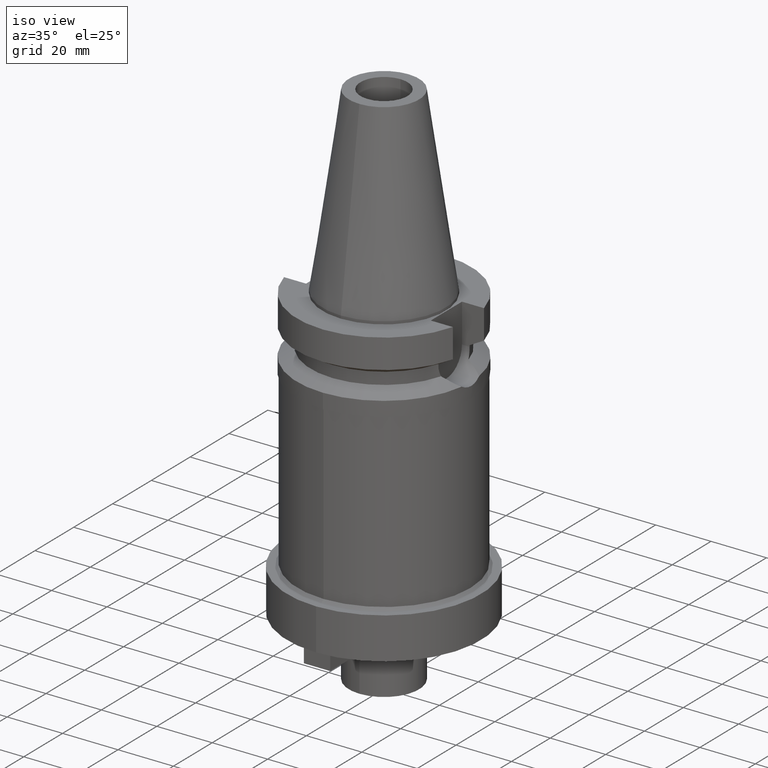
[diagram: clean part render]
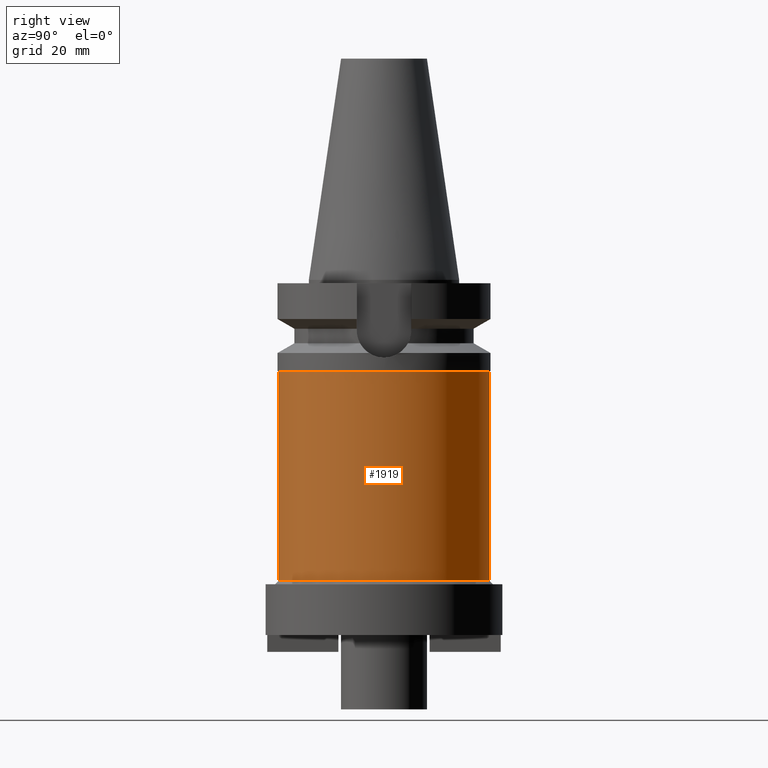
[diagram: tour spotlight — one face highlighted and labeled with its STEP entity id]
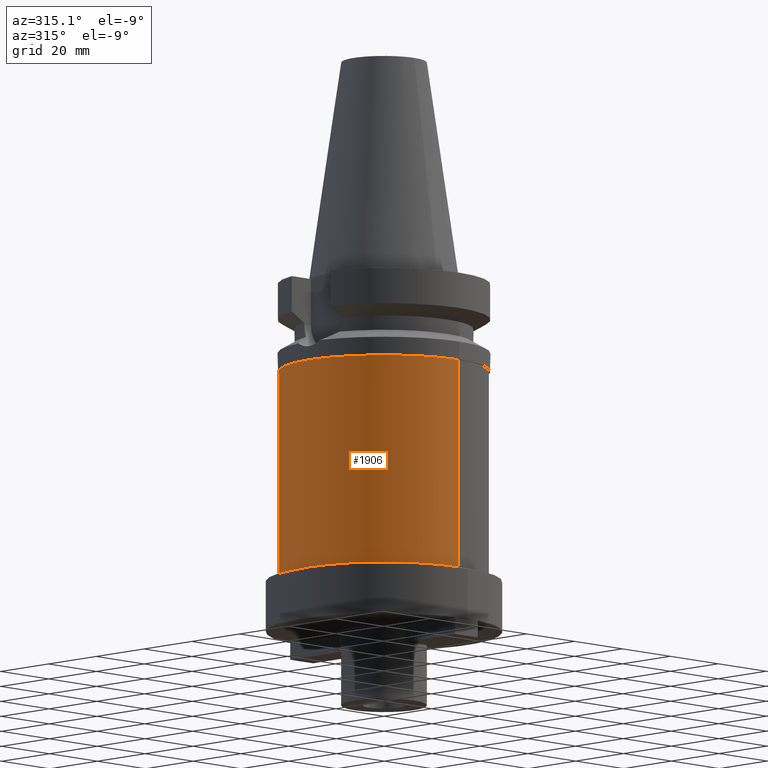
[diagram: tour spotlight — one face highlighted and labeled with its STEP entity id]
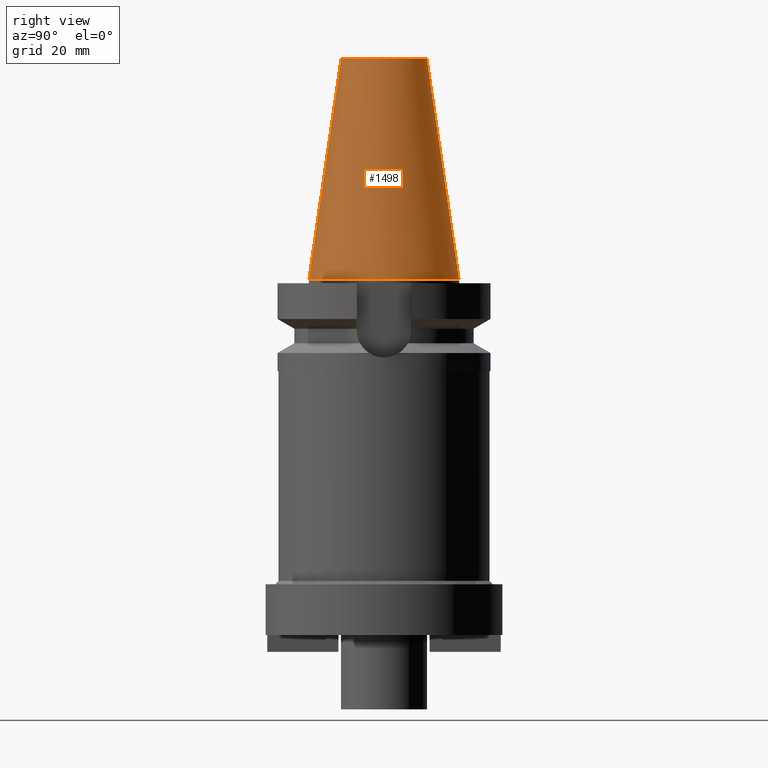
[diagram: tour spotlight — one face highlighted and labeled with its STEP entity id]
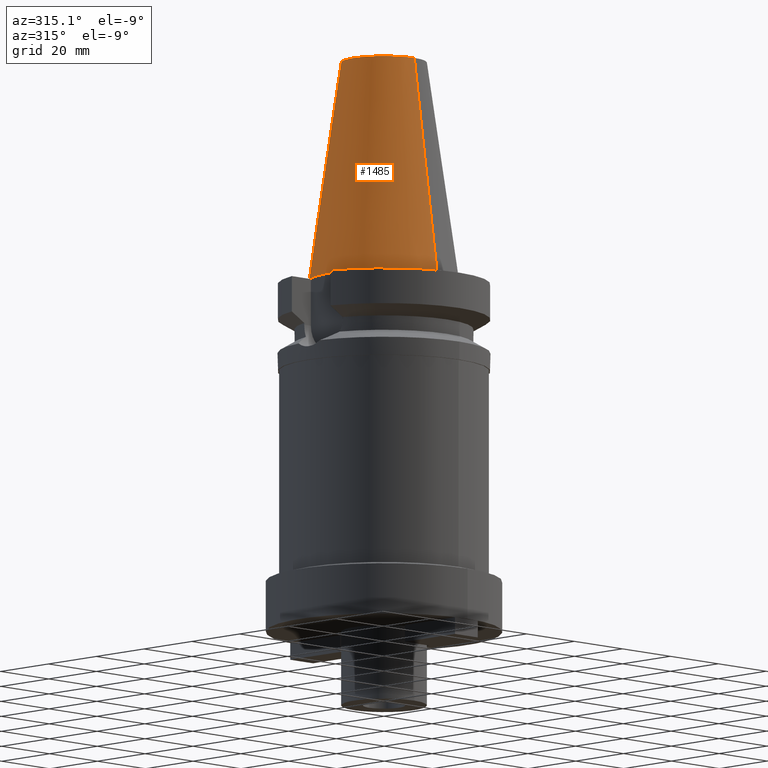
[diagram: tour spotlight — one face highlighted and labeled with its STEP entity id]
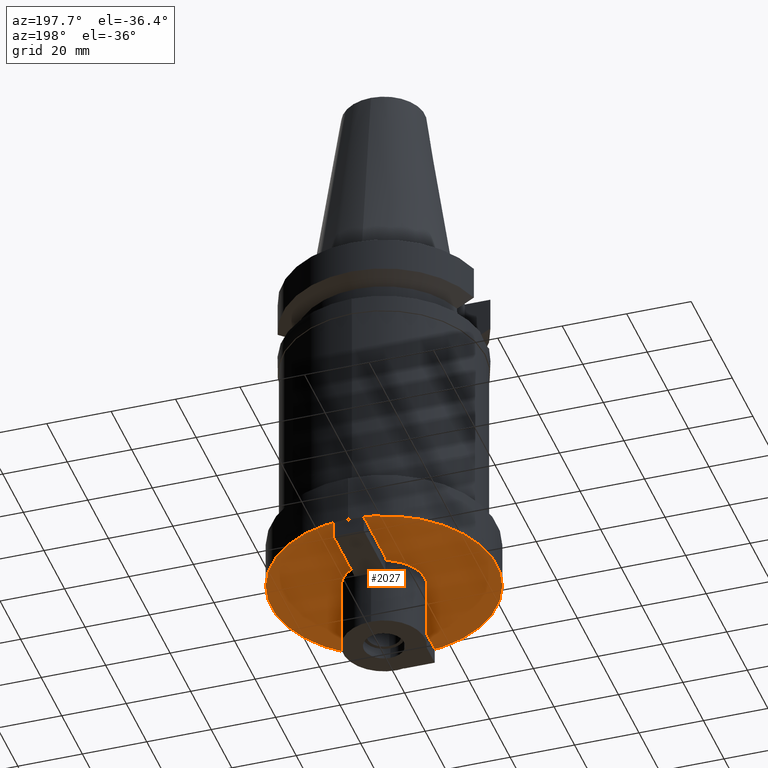
[diagram: tour spotlight — one face highlighted and labeled with its STEP entity id]
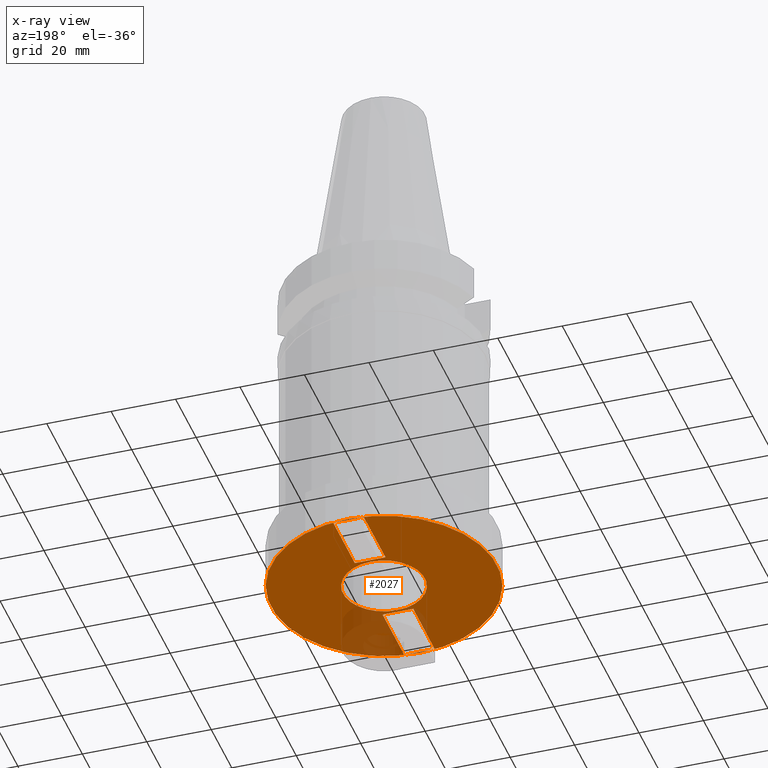
[diagram: x-ray of the same camera — body ghosted, this tour face saturated]
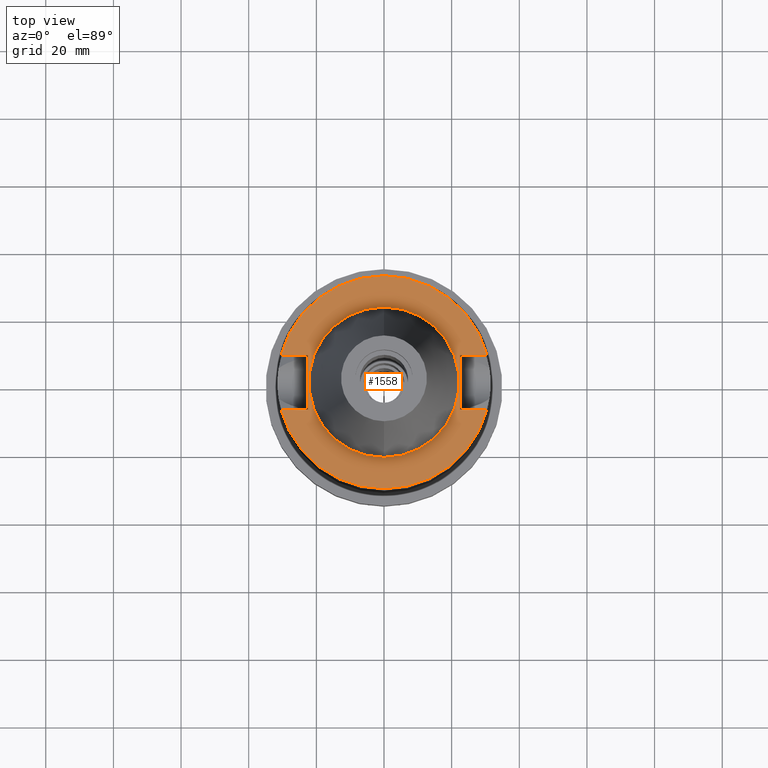
[diagram: tour spotlight — one face highlighted and labeled with its STEP entity id]
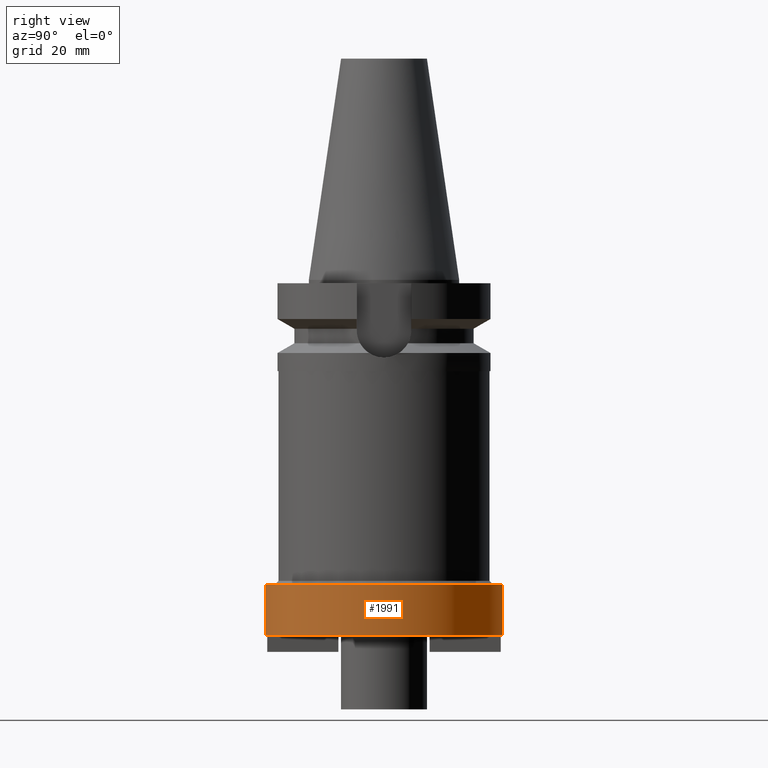
[diagram: tour spotlight — one face highlighted and labeled with its STEP entity id]
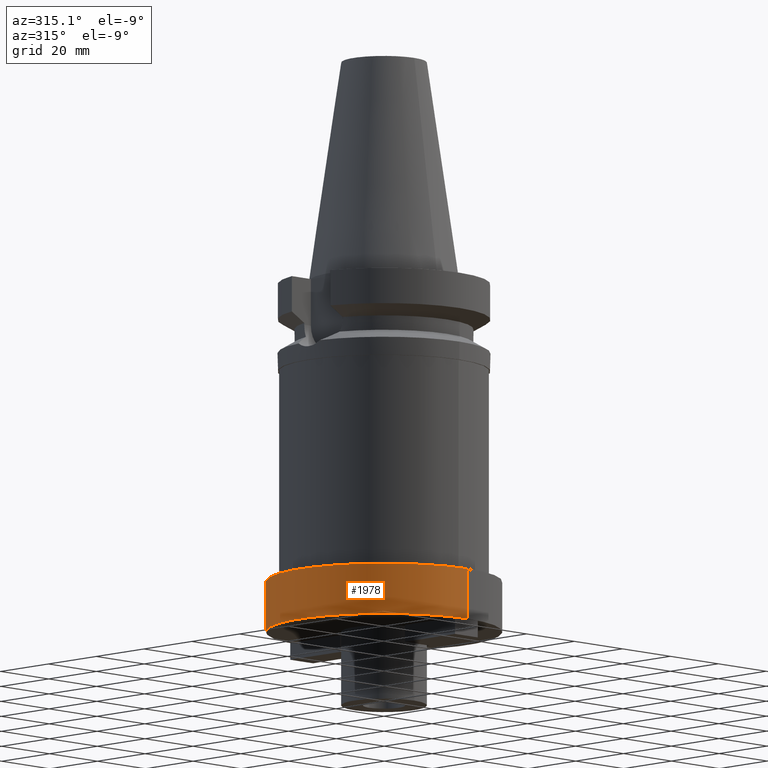
[diagram: tour spotlight — one face highlighted and labeled with its STEP entity id]
A machine part: a face-by-face anatomy tour. The part has 64 B-rep faces; the first image is the clean iso view, then the 8 largest visible faces are spotlighted one at a time (largest first), each with its STEP entity span.

Face 1 — right view, entity #1919. In plain terms, the highlighted cylindrical surface (partial cylindrical patch) has radius 31.2 mm, axis along (0, 0, -1).
Definition (entity closure, byte-faithful):
#650=CARTESIAN_POINT('',(0.E0,2.143376827868E-14,-2.7E1));
#651=DIRECTION('',(0.E0,0.E0,-1.E0));
#652=DIRECTION('',(0.E0,1.E0,0.E0));
#653=AXIS2_PLACEMENT_3D('',#650,#651,#652);
#658=DIRECTION('',(0.E0,0.E0,-1.E0));
#659=VECTOR('',#658,6.2E1);
#660=CARTESIAN_POINT('',(0.E0,-3.12E1,-2.7E1));
#661=LINE('',#660,#659);
#665=DIRECTION('',(0.E0,0.E0,-1.E0));
#666=VECTOR('',#665,6.2E1);
#667=CARTESIAN_POINT('',(0.E0,3.12E1,-2.7E1));
#668=LINE('',#667,#666);
#679=CARTESIAN_POINT('',(0.E0,0.E0,-8.9E1));
#680=DIRECTION('',(0.E0,0.E0,1.E0));
#681=DIRECTION('',(0.E0,-1.E0,0.E0));
#682=AXIS2_PLACEMENT_3D('',#679,#680,#681);
#1340=CARTESIAN_POINT('',(0.E0,3.12E1,-8.9E1));
#1341=VERTEX_POINT('',#1340);
#1342=CARTESIAN_POINT('',(0.E0,-3.12E1,-8.9E1));
#1343=VERTEX_POINT('',#1342);
#1344=CARTESIAN_POINT('',(0.E0,3.12E1,-2.7E1));
#1345=VERTEX_POINT('',#1344);
#1346=CARTESIAN_POINT('',(0.E0,-3.12E1,-2.7E1));
#1347=VERTEX_POINT('',#1346);
#1907=CARTESIAN_POINT('',(0.E0,2.143376827868E-14,7.502E1));
#1908=DIRECTION('',(0.E0,0.E0,-1.E0));
#1909=DIRECTION('',(0.E0,-1.E0,0.E0));
#1910=AXIS2_PLACEMENT_3D('',#1907,#1908,#1909);
#1911=CYLINDRICAL_SURFACE('',#1910,3.12E1);
#1912=ORIENTED_EDGE('',*,*,#1897,.T.);
#1914=ORIENTED_EDGE('',*,*,#1913,.F.);
#1915=ORIENTED_EDGE('',*,*,#1900,.F.);
#1916=ORIENTED_EDGE('',*,*,#1887,.F.);
#1917=EDGE_LOOP('',(#1912,#1914,#1915,#1916));
#1918=FACE_OUTER_BOUND('',#1917,.F.);
#654=CIRCLE('',#653,3.12E1);
#683=CIRCLE('',#682,3.12E1);
#1887=EDGE_CURVE('',#1345,#1347,#654,.T.);
#1897=EDGE_CURVE('',#1345,#1341,#668,.T.);
#1900=EDGE_CURVE('',#1347,#1343,#661,.T.);
#1913=EDGE_CURVE('',#1343,#1341,#683,.T.);
#1919=ADVANCED_FACE('',(#1918),#1911,.T.);

Face 2 — auxiliary view, entity #1906. In plain terms, the highlighted cylindrical surface (partial cylindrical patch) has radius 31.2 mm, axis along (0, 0, -1).
Definition (entity closure, byte-faithful):
#642=CARTESIAN_POINT('',(0.E0,2.143376827868E-14,-2.7E1));
#643=DIRECTION('',(0.E0,0.E0,-1.E0));
#644=DIRECTION('',(0.E0,-1.E0,0.E0));
#645=AXIS2_PLACEMENT_3D('',#642,#643,#644);
#658=DIRECTION('',(0.E0,0.E0,-1.E0));
#659=VECTOR('',#658,6.2E1);
#660=CARTESIAN_POINT('',(0.E0,-3.12E1,-2.7E1));
#661=LINE('',#660,#659);
#665=DIRECTION('',(0.E0,0.E0,-1.E0));
#666=VECTOR('',#665,6.2E1);
#667=CARTESIAN_POINT('',(0.E0,3.12E1,-2.7E1));
#668=LINE('',#667,#666);
#687=CARTESIAN_POINT('',(0.E0,0.E0,-8.9E1));
#688=DIRECTION('',(0.E0,0.E0,1.E0));
#689=DIRECTION('',(0.E0,1.E0,0.E0));
#690=AXIS2_PLACEMENT_3D('',#687,#688,#689);
#1340=CARTESIAN_POINT('',(0.E0,3.12E1,-8.9E1));
#1341=VERTEX_POINT('',#1340);
#1342=CARTESIAN_POINT('',(0.E0,-3.12E1,-8.9E1));
#1343=VERTEX_POINT('',#1342);
#1344=CARTESIAN_POINT('',(0.E0,3.12E1,-2.7E1));
#1345=VERTEX_POINT('',#1344);
#1346=CARTESIAN_POINT('',(0.E0,-3.12E1,-2.7E1));
#1347=VERTEX_POINT('',#1346);
#1892=CARTESIAN_POINT('',(0.E0,2.143376827868E-14,7.502E1));
#1893=DIRECTION('',(0.E0,0.E0,-1.E0));
#1894=DIRECTION('',(0.E0,-1.E0,0.E0));
#1895=AXIS2_PLACEMENT_3D('',#1892,#1893,#1894);
#1896=CYLINDRICAL_SURFACE('',#1895,3.12E1);
#1898=ORIENTED_EDGE('',*,*,#1897,.F.);
#1899=ORIENTED_EDGE('',*,*,#1885,.F.);
#1901=ORIENTED_EDGE('',*,*,#1900,.T.);
#1903=ORIENTED_EDGE('',*,*,#1902,.F.);
#1904=EDGE_LOOP('',(#1898,#1899,#1901,#1903));
#1905=FACE_OUTER_BOUND('',#1904,.F.);
#646=CIRCLE('',#645,3.12E1);
#691=CIRCLE('',#690,3.12E1);
#1885=EDGE_CURVE('',#1347,#1345,#646,.T.);
#1897=EDGE_CURVE('',#1345,#1341,#668,.T.);
#1900=EDGE_CURVE('',#1347,#1343,#661,.T.);
#1902=EDGE_CURVE('',#1341,#1343,#691,.T.);
#1906=ADVANCED_FACE('',(#1905),#1896,.T.);

Face 3 — right view, entity #1498. In plain terms, the highlighted conical surface has half-angle 8.297 deg.
Definition (entity closure, byte-faithful):
#26=CARTESIAN_POINT('',(0.E0,1.625106302469E-14,6.54E1));
#27=DIRECTION('',(0.E0,0.E0,-1.E0));
#28=DIRECTION('',(0.E0,1.E0,0.E0));
#29=AXIS2_PLACEMENT_3D('',#26,#27,#28);
#50=DIRECTION('',(0.E0,-1.443043893540E-1,-9.895333461856E-1));
#51=VECTOR('',#50,6.609175956738E1);
#52=CARTESIAN_POINT('',(0.E0,-1.268766899430E1,6.54E1));
#53=LINE('',#52,#51);
#65=DIRECTION('',(0.E0,1.443043893540E-1,-9.895333461856E-1));
#66=VECTOR('',#65,6.609175956738E1);
#67=CARTESIAN_POINT('',(0.E0,1.268766899430E1,6.54E1));
#68=LINE('',#67,#66);
#72=CARTESIAN_POINT('',(0.E0,1.625106302469E-14,2.842170943040E-14));
#73=DIRECTION('',(0.E0,0.E0,-1.E0));
#74=DIRECTION('',(0.E0,1.E0,0.E0));
#75=AXIS2_PLACEMENT_3D('',#72,#73,#74);
#1252=CARTESIAN_POINT('',(0.E0,-1.268766899430E1,6.54E1));
#1253=CARTESIAN_POINT('',(0.E0,1.268766899430E1,6.54E1));
#1254=VERTEX_POINT('',#1252);
#1255=VERTEX_POINT('',#1253);
#1425=CARTESIAN_POINT('',(0.E0,2.2225E1,9.237055564881E-14));
#1426=VERTEX_POINT('',#1425);
#1427=CARTESIAN_POINT('',(0.E0,-2.2225E1,9.237055564881E-14));
#1428=VERTEX_POINT('',#1427);
#1486=CARTESIAN_POINT('',(0.E0,1.625106302469E-14,3.27E1));
#1487=DIRECTION('',(0.E0,0.E0,-1.E0));
#1488=DIRECTION('',(0.E0,-1.E0,0.E0));
#1489=AXIS2_PLACEMENT_3D('',#1486,#1487,#1488);
#1490=CONICAL_SURFACE('',#1489,1.745633449715E1,8.297E0);
#1491=ORIENTED_EDGE('',*,*,#1476,.T.);
#1493=ORIENTED_EDGE('',*,*,#1492,.T.);
#1494=ORIENTED_EDGE('',*,*,#1479,.F.);
#1495=ORIENTED_EDGE('',*,*,#1460,.F.);
#1496=EDGE_LOOP('',(#1491,#1493,#1494,#1495));
#1497=FACE_OUTER_BOUND('',#1496,.F.);
#30=CIRCLE('',#29,1.268766899430E1);
#76=CIRCLE('',#75,2.2225E1);
#1460=EDGE_CURVE('',#1255,#1254,#30,.T.);
#1476=EDGE_CURVE('',#1255,#1426,#68,.T.);
#1479=EDGE_CURVE('',#1254,#1428,#53,.T.);
#1492=EDGE_CURVE('',#1426,#1428,#76,.T.);
#1498=ADVANCED_FACE('',(#1497),#1490,.T.);

Face 4 — auxiliary view, entity #1485. In plain terms, the highlighted conical surface has half-angle 8.297 deg.
Definition (entity closure, byte-faithful):
#17=CARTESIAN_POINT('',(0.E0,1.625106302469E-14,6.54E1));
#18=DIRECTION('',(0.E0,0.E0,-1.E0));
#19=DIRECTION('',(0.E0,-1.E0,0.E0));
#20=AXIS2_PLACEMENT_3D('',#17,#18,#19);
#50=DIRECTION('',(0.E0,-1.443043893540E-1,-9.895333461856E-1));
#51=VECTOR('',#50,6.609175956738E1);
#52=CARTESIAN_POINT('',(0.E0,-1.268766899430E1,6.54E1));
#53=LINE('',#52,#51);
#57=CARTESIAN_POINT('',(0.E0,1.625106302469E-14,2.842170943040E-14));
#58=DIRECTION('',(0.E0,0.E0,-1.E0));
#59=DIRECTION('',(0.E0,-1.E0,0.E0));
#60=AXIS2_PLACEMENT_3D('',#57,#58,#59);
#65=DIRECTION('',(0.E0,1.443043893540E-1,-9.895333461856E-1));
#66=VECTOR('',#65,6.609175956738E1);
#67=CARTESIAN_POINT('',(0.E0,1.268766899430E1,6.54E1));
#68=LINE('',#67,#66);
#1252=CARTESIAN_POINT('',(0.E0,-1.268766899430E1,6.54E1));
#1253=CARTESIAN_POINT('',(0.E0,1.268766899430E1,6.54E1));
#1254=VERTEX_POINT('',#1252);
#1255=VERTEX_POINT('',#1253);
#1425=CARTESIAN_POINT('',(0.E0,2.2225E1,9.237055564881E-14));
#1426=VERTEX_POINT('',#1425);
#1427=CARTESIAN_POINT('',(0.E0,-2.2225E1,9.237055564881E-14));
#1428=VERTEX_POINT('',#1427);
#1471=CARTESIAN_POINT('',(0.E0,1.625106302469E-14,3.27E1));
#1472=DIRECTION('',(0.E0,0.E0,-1.E0));
#1473=DIRECTION('',(0.E0,-1.E0,0.E0));
#1474=AXIS2_PLACEMENT_3D('',#1471,#1472,#1473);
#1475=CONICAL_SURFACE('',#1474,1.745633449715E1,8.297E0);
#1477=ORIENTED_EDGE('',*,*,#1476,.F.);
#1478=ORIENTED_EDGE('',*,*,#1458,.F.);
#1480=ORIENTED_EDGE('',*,*,#1479,.T.);
#1482=ORIENTED_EDGE('',*,*,#1481,.T.);
#1483=EDGE_LOOP('',(#1477,#1478,#1480,#1482));
#1484=FACE_OUTER_BOUND('',#1483,.F.);
#21=CIRCLE('',#20,1.268766899430E1);
#61=CIRCLE('',#60,2.2225E1);
#1458=EDGE_CURVE('',#1254,#1255,#21,.T.);
#1476=EDGE_CURVE('',#1255,#1426,#68,.T.);
#1479=EDGE_CURVE('',#1254,#1428,#53,.T.);
#1481=EDGE_CURVE('',#1428,#1426,#61,.T.);
#1485=ADVANCED_FACE('',(#1484),#1475,.T.);

Face 5 — auxiliary view, entity #2027. An x-ray twin of the same camera follows (body ghosted, this face saturated) — the face is partly hidden behind the body. In plain terms, the highlighted planar face has unit normal (0, 0, -1).
Definition (entity closure, byte-faithful):
#748=CARTESIAN_POINT('',(0.E0,2.143376827868E-14,-1.05E2));
#749=DIRECTION('',(0.E0,0.E0,1.E0));
#750=DIRECTION('',(0.E0,-1.E0,0.E0));
#751=AXIS2_PLACEMENT_3D('',#748,#749,#750);
#756=CARTESIAN_POINT('',(0.E0,2.143376827868E-14,-1.05E2));
#757=DIRECTION('',(0.E0,0.E0,1.E0));
#758=DIRECTION('',(0.E0,1.E0,0.E0));
#759=AXIS2_PLACEMENT_3D('',#756,#757,#758);
#764=CARTESIAN_POINT('',(0.E0,2.143376827868E-14,-1.05E2));
#765=DIRECTION('',(0.E0,0.E0,-1.E0));
#766=DIRECTION('',(0.E0,-1.E0,0.E0));
#767=AXIS2_PLACEMENT_3D('',#764,#765,#766);
#772=CARTESIAN_POINT('',(0.E0,2.143376827868E-14,-1.05E2));
#773=DIRECTION('',(0.E0,0.E0,-1.E0));
#774=DIRECTION('',(0.E0,1.E0,0.E0));
#775=AXIS2_PLACEMENT_3D('',#772,#773,#774);
#780=DIRECTION('',(0.E0,1.E0,0.E0));
#781=VECTOR('',#780,2.1E1);
#782=CARTESIAN_POINT('',(-4.75E0,1.35E1,-1.05E2));
#783=LINE('',#782,#781);
#787=DIRECTION('',(-1.E0,0.E0,0.E0));
#788=VECTOR('',#787,9.5E0);
#789=CARTESIAN_POINT('',(4.75E0,1.35E1,-1.05E2));
#790=LINE('',#789,#788);
#794=DIRECTION('',(0.E0,-1.E0,0.E0));
#795=VECTOR('',#794,2.1E1);
#796=CARTESIAN_POINT('',(4.75E0,-1.35E1,-1.05E2));
#797=LINE('',#796,#795);
#801=DIRECTION('',(1.E0,0.E0,0.E0));
#802=VECTOR('',#801,9.5E0);
#803=CARTESIAN_POINT('',(-4.75E0,-1.35E1,-1.05E2));
#804=LINE('',#803,#802);
#1126=DIRECTION('',(0.E0,1.E0,0.E0));
#1127=VECTOR('',#1126,2.1E1);
#1128=CARTESIAN_POINT('',(4.75E0,1.35E1,-1.05E2));
#1129=LINE('',#1128,#1127);
#1154=DIRECTION('',(-1.E0,0.E0,0.E0));
#1155=VECTOR('',#1154,9.5E0);
#1156=CARTESIAN_POINT('',(4.75E0,3.45E1,-1.05E2));
#1157=LINE('',#1156,#1155);
#1196=DIRECTION('',(0.E0,-1.E0,0.E0));
#1197=VECTOR('',#1196,2.1E1);
#1198=CARTESIAN_POINT('',(-4.75E0,-1.35E1,-1.05E2));
#1199=LINE('',#1198,#1197);
#1224=DIRECTION('',(1.E0,0.E0,0.E0));
#1225=VECTOR('',#1224,9.5E0);
#1226=CARTESIAN_POINT('',(-4.75E0,-3.45E1,-1.05E2));
#1227=LINE('',#1226,#1225);
#1308=CARTESIAN_POINT('',(0.E0,1.27E1,-1.05E2));
#1309=VERTEX_POINT('',#1308);
#1310=CARTESIAN_POINT('',(0.E0,-1.27E1,-1.05E2));
#1311=VERTEX_POINT('',#1310);
#1312=CARTESIAN_POINT('',(0.E0,-3.5E1,-1.05E2));
#1313=CARTESIAN_POINT('',(0.E0,3.5E1,-1.05E2));
#1314=VERTEX_POINT('',#1312);
#1315=VERTEX_POINT('',#1313);
#1316=CARTESIAN_POINT('',(-4.75E0,1.35E1,-1.05E2));
#1317=CARTESIAN_POINT('',(-4.75E0,3.45E1,-1.05E2));
#1318=VERTEX_POINT('',#1316);
#1319=VERTEX_POINT('',#1317);
#1320=CARTESIAN_POINT('',(4.75E0,3.45E1,-1.05E2));
#1321=VERTEX_POINT('',#1320);
#1322=CARTESIAN_POINT('',(4.75E0,1.35E1,-1.05E2));
#1323=VERTEX_POINT('',#1322);
#1324=CARTESIAN_POINT('',(4.75E0,-1.35E1,-1.05E2));
#1325=CARTESIAN_POINT('',(4.75E0,-3.45E1,-1.05E2));
#1326=VERTEX_POINT('',#1324);
#1327=VERTEX_POINT('',#1325);
#1328=CARTESIAN_POINT('',(-4.75E0,-3.45E1,-1.05E2));
#1329=VERTEX_POINT('',#1328);
#1330=CARTESIAN_POINT('',(-4.75E0,-1.35E1,-1.05E2));
#1331=VERTEX_POINT('',#1330);
#1992=CARTESIAN_POINT('',(0.E0,0.E0,-1.05E2));
#1993=DIRECTION('',(0.E0,0.E0,-1.E0));
#1994=DIRECTION('',(0.E0,-1.E0,0.E0));
#1995=AXIS2_PLACEMENT_3D('',#1992,#1993,#1994);
#1996=PLANE('',#1995);
#1997=ORIENTED_EDGE('',*,*,#1985,.T.);
#1998=ORIENTED_EDGE('',*,*,#1974,.T.);
#1999=EDGE_LOOP('',(#1997,#1998));
#2000=FACE_OUTER_BOUND('',#1999,.F.);
#2002=ORIENTED_EDGE('',*,*,#2001,.T.);
#2004=ORIENTED_EDGE('',*,*,#2003,.T.);
#2005=EDGE_LOOP('',(#2002,#2004));
#2006=FACE_BOUND('',#2005,.F.);
#2008=ORIENTED_EDGE('',*,*,#2007,.T.);
#2010=ORIENTED_EDGE('',*,*,#2009,.F.);
#2012=ORIENTED_EDGE('',*,*,#2011,.F.);
#2014=ORIENTED_EDGE('',*,*,#2013,.T.);
#2015=EDGE_LOOP('',(#2008,#2010,#2012,#2014));
#2016=FACE_BOUND('',#2015,.F.);
#2018=ORIENTED_EDGE('',*,*,#2017,.T.);
#2020=ORIENTED_EDGE('',*,*,#2019,.F.);
#2022=ORIENTED_EDGE('',*,*,#2021,.F.);
#2024=ORIENTED_EDGE('',*,*,#2023,.T.);
#2025=EDGE_LOOP('',(#2018,#2020,#2022,#2024));
#2026=FACE_BOUND('',#2025,.F.);
#752=CIRCLE('',#751,3.5E1);
#760=CIRCLE('',#759,3.5E1);
#768=CIRCLE('',#767,1.27E1);
#776=CIRCLE('',#775,1.27E1);
#1974=EDGE_CURVE('',#1315,#1314,#760,.T.);
#1985=EDGE_CURVE('',#1314,#1315,#752,.T.);
#2001=EDGE_CURVE('',#1311,#1309,#768,.T.);
#2003=EDGE_CURVE('',#1309,#1311,#776,.T.);
#2007=EDGE_CURVE('',#1318,#1319,#783,.T.);
#2009=EDGE_CURVE('',#1321,#1319,#1157,.T.);
#2011=EDGE_CURVE('',#1323,#1321,#1129,.T.);
#2013=EDGE_CURVE('',#1323,#1318,#790,.T.);
#2017=EDGE_CURVE('',#1326,#1327,#797,.T.);
#2019=EDGE_CURVE('',#1329,#1327,#1227,.T.);
#2021=EDGE_CURVE('',#1331,#1329,#1199,.T.);
#2023=EDGE_CURVE('',#1331,#1326,#804,.T.);
#2027=ADVANCED_FACE('',(#2000,#2006,#2016,#2026),#1996,.T.);

Face 6 — top view, entity #1558. In plain terms, the highlighted planar face has unit normal (0, 0, -1).
Definition (entity closure, byte-faithful):
#94=DIRECTION('',(0.E0,1.E0,0.E0));
#95=VECTOR('',#94,1.61E1);
#96=CARTESIAN_POINT('',(-2.25E1,-8.05E0,-1.E0));
#97=LINE('',#96,#95);
#101=DIRECTION('',(-1.E0,-3.550916904668E-14,0.E0));
#102=VECTOR('',#101,7.954022722788E0);
#103=CARTESIAN_POINT('',(-2.25E1,8.05E0,-1.E0));
#104=LINE('',#103,#102);
#108=CARTESIAN_POINT('',(0.E0,2.143376827868E-14,-1.E0));
#109=DIRECTION('',(0.E0,0.E0,-1.E0));
#110=DIRECTION('',(-9.667943721520E-1,2.555555555556E-1,0.E0));
#111=AXIS2_PLACEMENT_3D('',#108,#109,#110);
#116=CARTESIAN_POINT('',(0.E0,2.143376827868E-14,-1.E0));
#117=DIRECTION('',(0.E0,0.E0,-1.E0));
#118=DIRECTION('',(0.E0,1.E0,0.E0));
#119=AXIS2_PLACEMENT_3D('',#116,#117,#118);
#124=DIRECTION('',(0.E0,-1.E0,0.E0));
#125=VECTOR('',#124,1.61E1);
#126=CARTESIAN_POINT('',(2.25E1,8.05E0,-1.E0));
#127=LINE('',#126,#125);
#131=DIRECTION('',(1.E0,3.573249715390E-14,0.E0));
#132=VECTOR('',#131,7.954022722788E0);
#133=CARTESIAN_POINT('',(2.25E1,-8.05E0,-1.E0));
#134=LINE('',#133,#132);
#138=CARTESIAN_POINT('',(0.E0,2.143376827868E-14,-1.E0));
#139=DIRECTION('',(0.E0,0.E0,-1.E0));
#140=DIRECTION('',(9.667943721520E-1,-2.555555555556E-1,0.E0));
#141=AXIS2_PLACEMENT_3D('',#138,#139,#140);
#146=CARTESIAN_POINT('',(0.E0,2.143376827868E-14,-1.E0));
#147=DIRECTION('',(0.E0,0.E0,-1.E0));
#148=DIRECTION('',(0.E0,-1.E0,0.E0));
#149=AXIS2_PLACEMENT_3D('',#146,#147,#148);
#154=CARTESIAN_POINT('',(0.E0,2.143376827868E-14,-1.E0));
#155=DIRECTION('',(0.E0,0.E0,1.E0));
#156=DIRECTION('',(0.E0,-1.E0,0.E0));
#157=AXIS2_PLACEMENT_3D('',#154,#155,#156);
#162=CARTESIAN_POINT('',(0.E0,2.143376827868E-14,-1.E0));
#163=DIRECTION('',(0.E0,0.E0,1.E0));
#164=DIRECTION('',(0.E0,1.E0,0.E0));
#165=AXIS2_PLACEMENT_3D('',#162,#163,#164);
#200=DIRECTION('',(-1.E0,3.550916904668E-14,0.E0));
#201=VECTOR('',#200,7.954022722788E0);
#202=CARTESIAN_POINT('',(-2.25E1,-8.05E0,-1.E0));
#203=LINE('',#202,#201);
#337=DIRECTION('',(1.E0,-3.506251283226E-14,0.E0));
#338=VECTOR('',#337,7.954022722788E0);
#339=CARTESIAN_POINT('',(2.25E1,8.05E0,-1.E0));
#340=LINE('',#339,#338);
#1399=CARTESIAN_POINT('',(-2.25E1,-8.05E0,-1.E0));
#1400=VERTEX_POINT('',#1399);
#1401=CARTESIAN_POINT('',(-3.045402272279E1,-8.05E0,-1.E0));
#1402=VERTEX_POINT('',#1401);
#1405=CARTESIAN_POINT('',(-2.25E1,8.05E0,-1.E0));
#1406=VERTEX_POINT('',#1405);
#1407=CARTESIAN_POINT('',(-3.045402272279E1,8.05E0,-1.E0));
#1408=VERTEX_POINT('',#1407);
#1409=CARTESIAN_POINT('',(-3.046064939756E-14,3.15E1,-1.E0));
#1410=CARTESIAN_POINT('',(3.045402272279E1,8.05E0,-1.E0));
#1411=VERTEX_POINT('',#1409);
#1412=VERTEX_POINT('',#1410);
#1413=CARTESIAN_POINT('',(2.25E1,8.05E0,-1.E0));
#1414=VERTEX_POINT('',#1413);
#1415=CARTESIAN_POINT('',(2.25E1,-8.05E0,-1.E0));
#1416=VERTEX_POINT('',#1415);
#1417=CARTESIAN_POINT('',(3.045402272279E1,-8.05E0,-1.E0));
#1418=VERTEX_POINT('',#1417);
#1419=CARTESIAN_POINT('',(3.046064939756E-14,-3.15E1,-1.E0));
#1420=VERTEX_POINT('',#1419);
#1421=CARTESIAN_POINT('',(0.E0,-2.2225E1,-1.E0));
#1422=CARTESIAN_POINT('',(0.E0,2.2225E1,-1.E0));
#1423=VERTEX_POINT('',#1421);
#1424=VERTEX_POINT('',#1422);
#1527=CARTESIAN_POINT('',(0.E0,1.212400331156E-14,-1.E0));
#1528=DIRECTION('',(0.E0,0.E0,-1.E0));
#1529=DIRECTION('',(0.E0,-1.E0,0.E0));
#1530=AXIS2_PLACEMENT_3D('',#1527,#1528,#1529);
#1531=PLANE('',#1530);
#1533=ORIENTED_EDGE('',*,*,#1532,.T.);
#1535=ORIENTED_EDGE('',*,*,#1534,.T.);
#1537=ORIENTED_EDGE('',*,*,#1536,.T.);
#1539=ORIENTED_EDGE('',*,*,#1538,.T.);
#1541=ORIENTED_EDGE('',*,*,#1540,.F.);
#1543=ORIENTED_EDGE('',*,*,#1542,.T.);
#1545=ORIENTED_EDGE('',*,*,#1544,.T.);
#1547=ORIENTED_EDGE('',*,*,#1546,.T.);
#1549=ORIENTED_EDGE('',*,*,#1548,.T.);
#1551=ORIENTED_EDGE('',*,*,#1550,.F.);
#1552=EDGE_LOOP('',(#1533,#1535,#1537,#1539,#1541,#1543,#1545,#1547,#1549,
#1551));
#1553=FACE_OUTER_BOUND('',#1552,.F.);
#1554=ORIENTED_EDGE('',*,*,#1506,.T.);
#1555=ORIENTED_EDGE('',*,*,#1522,.T.);
#1556=EDGE_LOOP('',(#1554,#1555));
#1557=FACE_BOUND('',#1556,.F.);
#112=CIRCLE('',#111,3.15E1);
#120=CIRCLE('',#119,3.15E1);
#142=CIRCLE('',#141,3.15E1);
#150=CIRCLE('',#149,3.15E1);
#158=CIRCLE('',#157,2.2225E1);
#166=CIRCLE('',#165,2.2225E1);
#1506=EDGE_CURVE('',#1423,#1424,#158,.T.);
#1522=EDGE_CURVE('',#1424,#1423,#166,.T.);
#1532=EDGE_CURVE('',#1400,#1406,#97,.T.);
#1534=EDGE_CURVE('',#1406,#1408,#104,.T.);
#1536=EDGE_CURVE('',#1408,#1411,#112,.T.);
#1538=EDGE_CURVE('',#1411,#1412,#120,.T.);
#1540=EDGE_CURVE('',#1414,#1412,#340,.T.);
#1542=EDGE_CURVE('',#1414,#1416,#127,.T.);
#1544=EDGE_CURVE('',#1416,#1418,#134,.T.);
#1546=EDGE_CURVE('',#1418,#1420,#142,.T.);
#1548=EDGE_CURVE('',#1420,#1402,#150,.T.);
#1550=EDGE_CURVE('',#1400,#1402,#203,.T.);
#1558=ADVANCED_FACE('',(#1553,#1557),#1531,.F.);

Face 7 — right view, entity #1991. In plain terms, the highlighted cylindrical surface (partial cylindrical patch) has radius 35 mm, axis along (0, 0, -1).
Definition (entity closure, byte-faithful):
#710=CARTESIAN_POINT('',(0.E0,2.143376827868E-14,-9.E1));
#711=DIRECTION('',(0.E0,0.E0,-1.E0));
#712=DIRECTION('',(0.E0,1.E0,0.E0));
#713=AXIS2_PLACEMENT_3D('',#710,#711,#712);
#734=DIRECTION('',(0.E0,0.E0,-1.E0));
#735=VECTOR('',#734,1.5E1);
#736=CARTESIAN_POINT('',(0.E0,-3.5E1,-9.E1));
#737=LINE('',#736,#735);
#741=DIRECTION('',(0.E0,0.E0,-1.E0));
#742=VECTOR('',#741,1.5E1);
#743=CARTESIAN_POINT('',(0.E0,3.5E1,-9.E1));
#744=LINE('',#743,#742);
#748=CARTESIAN_POINT('',(0.E0,2.143376827868E-14,-1.05E2));
#749=DIRECTION('',(0.E0,0.E0,1.E0));
#750=DIRECTION('',(0.E0,-1.E0,0.E0));
#751=AXIS2_PLACEMENT_3D('',#748,#749,#750);
#1312=CARTESIAN_POINT('',(0.E0,-3.5E1,-1.05E2));
#1313=CARTESIAN_POINT('',(0.E0,3.5E1,-1.05E2));
#1314=VERTEX_POINT('',#1312);
#1315=VERTEX_POINT('',#1313);
#1332=CARTESIAN_POINT('',(0.E0,3.5E1,-9.E1));
#1333=VERTEX_POINT('',#1332);
#1334=CARTESIAN_POINT('',(0.E0,-3.5E1,-9.E1));
#1335=VERTEX_POINT('',#1334);
#1979=CARTESIAN_POINT('',(0.E0,2.143376827868E-14,7.502E1));
#1980=DIRECTION('',(0.E0,0.E0,-1.E0));
#1981=DIRECTION('',(0.E0,-1.E0,0.E0));
#1982=AXIS2_PLACEMENT_3D('',#1979,#1980,#1981);
#1983=CYLINDRICAL_SURFACE('',#1982,3.5E1);
#1984=ORIENTED_EDGE('',*,*,#1969,.T.);
#1986=ORIENTED_EDGE('',*,*,#1985,.F.);
#1987=ORIENTED_EDGE('',*,*,#1972,.F.);
#1988=ORIENTED_EDGE('',*,*,#1955,.F.);
#1989=EDGE_LOOP('',(#1984,#1986,#1987,#1988));
#1990=FACE_OUTER_BOUND('',#1989,.F.);
#714=CIRCLE('',#713,3.5E1);
#752=CIRCLE('',#751,3.5E1);
#1955=EDGE_CURVE('',#1333,#1335,#714,.T.);
#1969=EDGE_CURVE('',#1333,#1315,#744,.T.);
#1972=EDGE_CURVE('',#1335,#1314,#737,.T.);
#1985=EDGE_CURVE('',#1314,#1315,#752,.T.);
#1991=ADVANCED_FACE('',(#1990),#1983,.T.);

Face 8 — auxiliary view, entity #1978. In plain terms, the highlighted cylindrical surface (partial cylindrical patch) has radius 35 mm, axis along (0, 0, -1).
Definition (entity closure, byte-faithful):
#702=CARTESIAN_POINT('',(0.E0,2.143376827868E-14,-9.E1));
#703=DIRECTION('',(0.E0,0.E0,-1.E0));
#704=DIRECTION('',(0.E0,-1.E0,0.E0));
#705=AXIS2_PLACEMENT_3D('',#702,#703,#704);
#734=DIRECTION('',(0.E0,0.E0,-1.E0));
#735=VECTOR('',#734,1.5E1);
#736=CARTESIAN_POINT('',(0.E0,-3.5E1,-9.E1));
#737=LINE('',#736,#735);
#741=DIRECTION('',(0.E0,0.E0,-1.E0));
#742=VECTOR('',#741,1.5E1);
#743=CARTESIAN_POINT('',(0.E0,3.5E1,-9.E1));
#744=LINE('',#743,#742);
#756=CARTESIAN_POINT('',(0.E0,2.143376827868E-14,-1.05E2));
#757=DIRECTION('',(0.E0,0.E0,1.E0));
#758=DIRECTION('',(0.E0,1.E0,0.E0));
#759=AXIS2_PLACEMENT_3D('',#756,#757,#758);
#1312=CARTESIAN_POINT('',(0.E0,-3.5E1,-1.05E2));
#1313=CARTESIAN_POINT('',(0.E0,3.5E1,-1.05E2));
#1314=VERTEX_POINT('',#1312);
#1315=VERTEX_POINT('',#1313);
#1332=CARTESIAN_POINT('',(0.E0,3.5E1,-9.E1));
#1333=VERTEX_POINT('',#1332);
#1334=CARTESIAN_POINT('',(0.E0,-3.5E1,-9.E1));
#1335=VERTEX_POINT('',#1334);
#1964=CARTESIAN_POINT('',(0.E0,2.143376827868E-14,7.502E1));
#1965=DIRECTION('',(0.E0,0.E0,-1.E0));
#1966=DIRECTION('',(0.E0,-1.E0,0.E0));
#1967=AXIS2_PLACEMENT_3D('',#1964,#1965,#1966);
#1968=CYLINDRICAL_SURFACE('',#1967,3.5E1);
#1970=ORIENTED_EDGE('',*,*,#1969,.F.);
#1971=ORIENTED_EDGE('',*,*,#1953,.F.);
#1973=ORIENTED_EDGE('',*,*,#1972,.T.);
#1975=ORIENTED_EDGE('',*,*,#1974,.F.);
#1976=EDGE_LOOP('',(#1970,#1971,#1973,#1975));
#1977=FACE_OUTER_BOUND('',#1976,.F.);
#706=CIRCLE('',#705,3.5E1);
#760=CIRCLE('',#759,3.5E1);
#1953=EDGE_CURVE('',#1335,#1333,#706,.T.);
#1969=EDGE_CURVE('',#1333,#1315,#744,.T.);
#1972=EDGE_CURVE('',#1335,#1314,#737,.T.);
#1974=EDGE_CURVE('',#1315,#1314,#760,.T.);
#1978=ADVANCED_FACE('',(#1977),#1968,.T.);